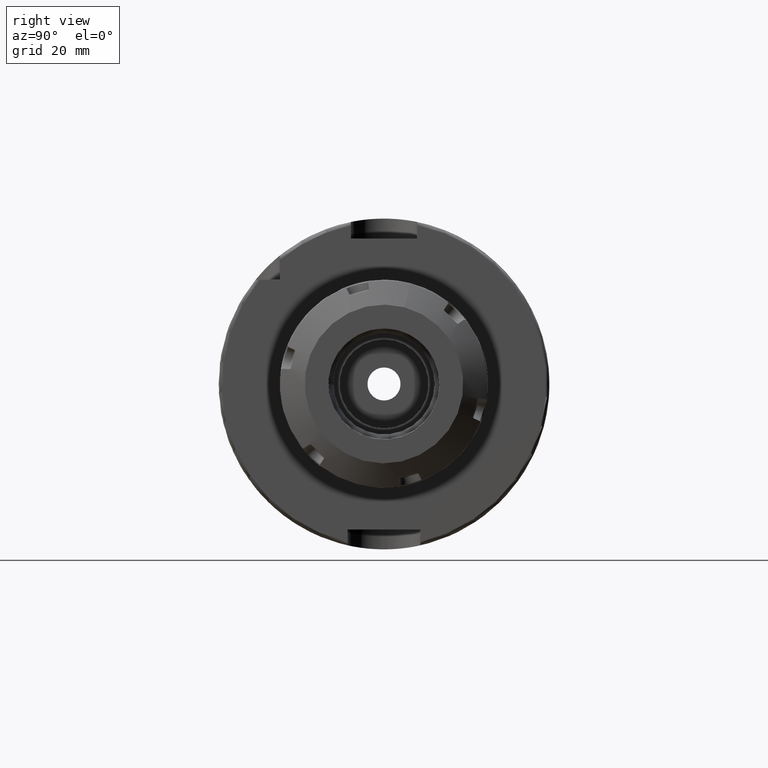
[diagram: clean part render]
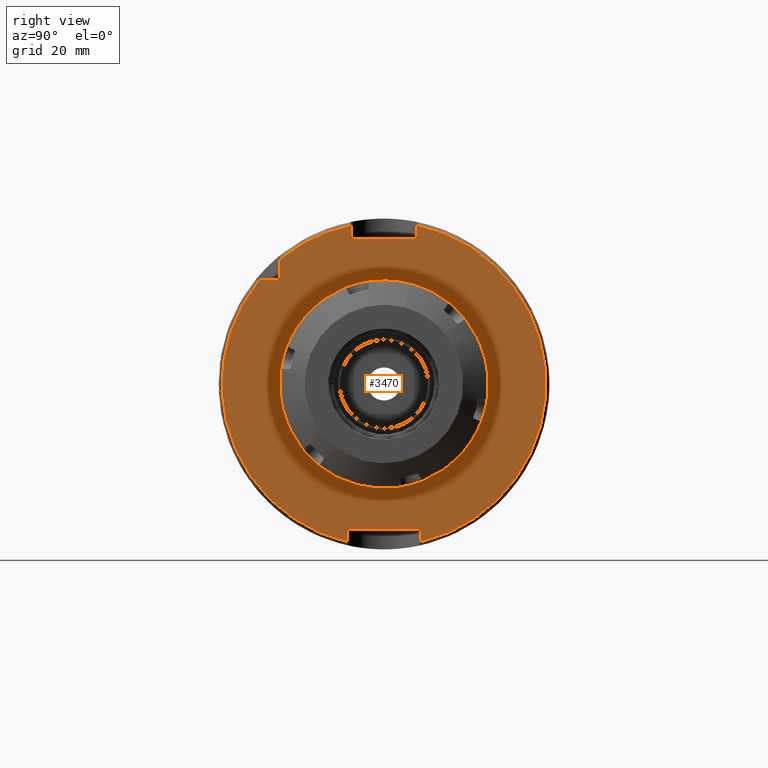
[diagram: same view with one face highlighted and labeled with its STEP entity id]
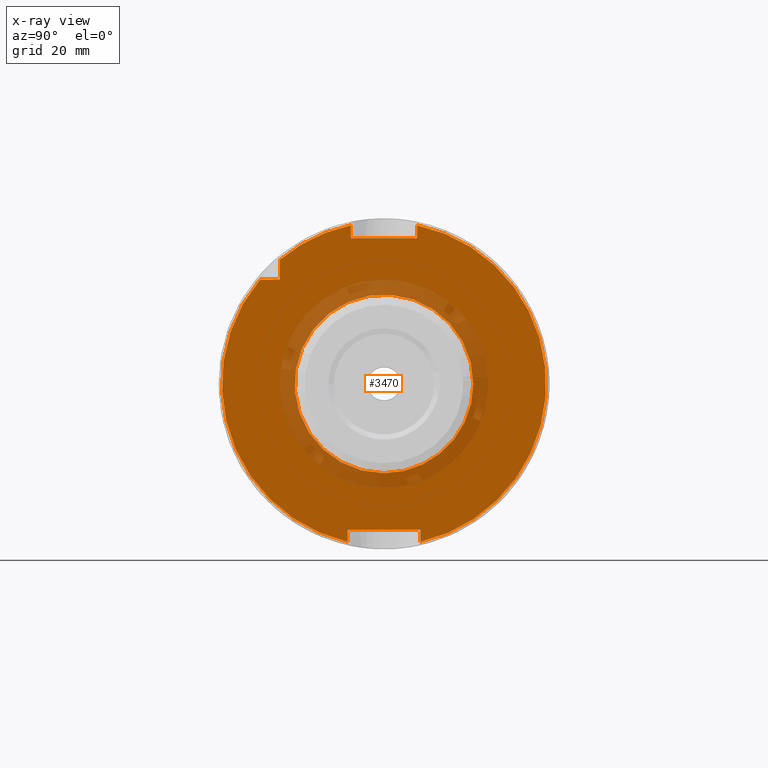
[diagram: x-ray of the same camera — body ghosted, the highlighted face saturated]
A machine part, right view. The second image highlights one B-rep face of the part: STEP entity #3470.
The next image is the same camera in x-ray: the body ghosted, the highlighted face saturated — about 17% of this face is hidden behind the body in this view.
In plain terms, the highlighted planar face has unit normal (1, 0, 0).
Its self-contained STEP definition (entity closure, byte-faithful):
#244=FACE_BOUND('',#546,.T.);
#262=PLANE('',#3751);
#342=FACE_OUTER_BOUND('',#545,.T.);
#545=EDGE_LOOP('',(#2327,#2328,#2329,#2330,#2331,#2332,#2333,#2334,#2335,
#2336,#2337));
#546=EDGE_LOOP('',(#2338,#2339));
#759=LINE('',#5265,#948);
#760=LINE('',#5269,#949);
#761=LINE('',#5271,#950);
#762=LINE('',#5273,#951);
#763=LINE('',#5277,#952);
#764=LINE('',#5279,#953);
#765=LINE('',#5281,#954);
#766=LINE('',#5284,#955);
#948=VECTOR('',#4217,10.);
#949=VECTOR('',#4220,10.);
#950=VECTOR('',#4221,10.);
#951=VECTOR('',#4222,10.);
#952=VECTOR('',#4225,10.);
#953=VECTOR('',#4226,10.);
#954=VECTOR('',#4227,10.);
#955=VECTOR('',#4230,10.);
#1144=CIRCLE('',#3744,27.);
#1145=CIRCLE('',#3745,27.);
#1150=CIRCLE('',#3752,49.);
#1151=CIRCLE('',#3753,49.);
#1152=CIRCLE('',#3754,49.);
#1372=VERTEX_POINT('',#5248);
#1373=VERTEX_POINT('',#5250);
#1377=VERTEX_POINT('',#5263);
#1378=VERTEX_POINT('',#5264);
#1379=VERTEX_POINT('',#5266);
#1380=VERTEX_POINT('',#5268);
#1381=VERTEX_POINT('',#5270);
#1382=VERTEX_POINT('',#5272);
#1383=VERTEX_POINT('',#5274);
#1384=VERTEX_POINT('',#5276);
#1385=VERTEX_POINT('',#5278);
#1386=VERTEX_POINT('',#5280);
#1387=VERTEX_POINT('',#5282);
#1747=EDGE_CURVE('',#1372,#1373,#1144,.T.);
#1748=EDGE_CURVE('',#1373,#1372,#1145,.T.);
#1754=EDGE_CURVE('',#1377,#1378,#759,.T.);
#1755=EDGE_CURVE('',#1378,#1379,#1150,.T.);
#1756=EDGE_CURVE('',#1379,#1380,#760,.T.);
#1757=EDGE_CURVE('',#1380,#1381,#761,.T.);
#1758=EDGE_CURVE('',#1381,#1382,#762,.T.);
#1759=EDGE_CURVE('',#1382,#1383,#1151,.T.);
#1760=EDGE_CURVE('',#1383,#1384,#763,.T.);
#1761=EDGE_CURVE('',#1384,#1385,#764,.T.);
#1762=EDGE_CURVE('',#1385,#1386,#765,.T.);
#1763=EDGE_CURVE('',#1386,#1387,#1152,.T.);
#1764=EDGE_CURVE('',#1387,#1377,#766,.T.);
#2327=ORIENTED_EDGE('',*,*,#1754,.T.);
#2328=ORIENTED_EDGE('',*,*,#1755,.T.);
#2329=ORIENTED_EDGE('',*,*,#1756,.T.);
#2330=ORIENTED_EDGE('',*,*,#1757,.T.);
#2331=ORIENTED_EDGE('',*,*,#1758,.T.);
#2332=ORIENTED_EDGE('',*,*,#1759,.T.);
#2333=ORIENTED_EDGE('',*,*,#1760,.T.);
#2334=ORIENTED_EDGE('',*,*,#1761,.T.);
#2335=ORIENTED_EDGE('',*,*,#1762,.T.);
#2336=ORIENTED_EDGE('',*,*,#1763,.T.);
#2337=ORIENTED_EDGE('',*,*,#1764,.T.);
#2338=ORIENTED_EDGE('',*,*,#1748,.F.);
#2339=ORIENTED_EDGE('',*,*,#1747,.F.);
#3470=ADVANCED_FACE('',(#342,#244),#262,.T.);
#3744=AXIS2_PLACEMENT_3D('',#5251,#4200,#4201);
#3745=AXIS2_PLACEMENT_3D('',#5252,#4202,#4203);
#3751=AXIS2_PLACEMENT_3D('',#5262,#4215,#4216);
#3752=AXIS2_PLACEMENT_3D('',#5267,#4218,#4219);
#3753=AXIS2_PLACEMENT_3D('',#5275,#4223,#4224);
#3754=AXIS2_PLACEMENT_3D('',#5283,#4228,#4229);
#4200=DIRECTION('center_axis',(1.,0.,0.));
#4201=DIRECTION('ref_axis',(0.,-1.,-1.22464679914735E-16));
#4202=DIRECTION('center_axis',(1.,0.,0.));
#4203=DIRECTION('ref_axis',(0.,-1.,-1.22464679914735E-16));
#4215=DIRECTION('center_axis',(1.,0.,0.));
#4216=DIRECTION('ref_axis',(0.,0.,-1.));
#4217=DIRECTION('',(0.,-1.,0.));
#4218=DIRECTION('center_axis',(1.,0.,0.));
#4219=DIRECTION('ref_axis',(0.,0.,-1.));
#4220=DIRECTION('',(0.,0.,1.));
#4221=DIRECTION('',(0.,1.,0.));
#4222=DIRECTION('',(0.,0.,-1.));
#4223=DIRECTION('center_axis',(1.,0.,0.));
#4224=DIRECTION('ref_axis',(0.,0.,-1.));
#4225=DIRECTION('',(0.,0.,-1.));
#4226=DIRECTION('',(0.,-1.,0.));
#4227=DIRECTION('',(0.,0.,1.));
#4228=DIRECTION('center_axis',(1.,0.,0.));
#4229=DIRECTION('ref_axis',(0.,0.,-1.));
#4230=DIRECTION('',(0.,0.,-1.));
#5248=CARTESIAN_POINT('',(29.,-3.30654635769785E-15,-27.));
#5250=CARTESIAN_POINT('',(29.,27.,6.6130927153957E-15));
#5251=CARTESIAN_POINT('Origin',(29.,0.,0.));
#5252=CARTESIAN_POINT('Origin',(29.,0.,0.));
#5262=CARTESIAN_POINT('Origin',(29.,0.,0.));
#5263=CARTESIAN_POINT('',(29.,-31.5,31.5));
#5264=CARTESIAN_POINT('',(29.,-37.5333185316726,31.5));
#5265=CARTESIAN_POINT('',(29.,-18.25,31.5));
#5266=CARTESIAN_POINT('',(29.,-11.,-47.7493455452533));
#5267=CARTESIAN_POINT('Origin',(29.,0.,0.));
#5268=CARTESIAN_POINT('',(29.,-11.,-44.));
#5269=CARTESIAN_POINT('',(29.,-11.,-22.));
#5270=CARTESIAN_POINT('',(29.,11.,-44.));
#5271=CARTESIAN_POINT('',(29.,-5.55111512312578E-16,-44.));
#5272=CARTESIAN_POINT('',(29.,11.,-47.7493455452533));
#5273=CARTESIAN_POINT('',(29.,11.,-22.));
#5274=CARTESIAN_POINT('',(29.,10.,47.9687398208458));
#5275=CARTESIAN_POINT('Origin',(29.,0.,0.));
#5276=CARTESIAN_POINT('',(29.,10.,44.));
#5277=CARTESIAN_POINT('',(29.,10.,22.));
#5278=CARTESIAN_POINT('',(29.,-10.,44.));
#5279=CARTESIAN_POINT('',(29.,0.,44.));
#5280=CARTESIAN_POINT('',(29.,-10.,47.9687398208458));
#5281=CARTESIAN_POINT('',(29.,-10.,22.));
#5282=CARTESIAN_POINT('',(29.,-31.5,37.5333185316726));
#5283=CARTESIAN_POINT('Origin',(29.,0.,0.));
#5284=CARTESIAN_POINT('',(29.,-31.5,15.75));